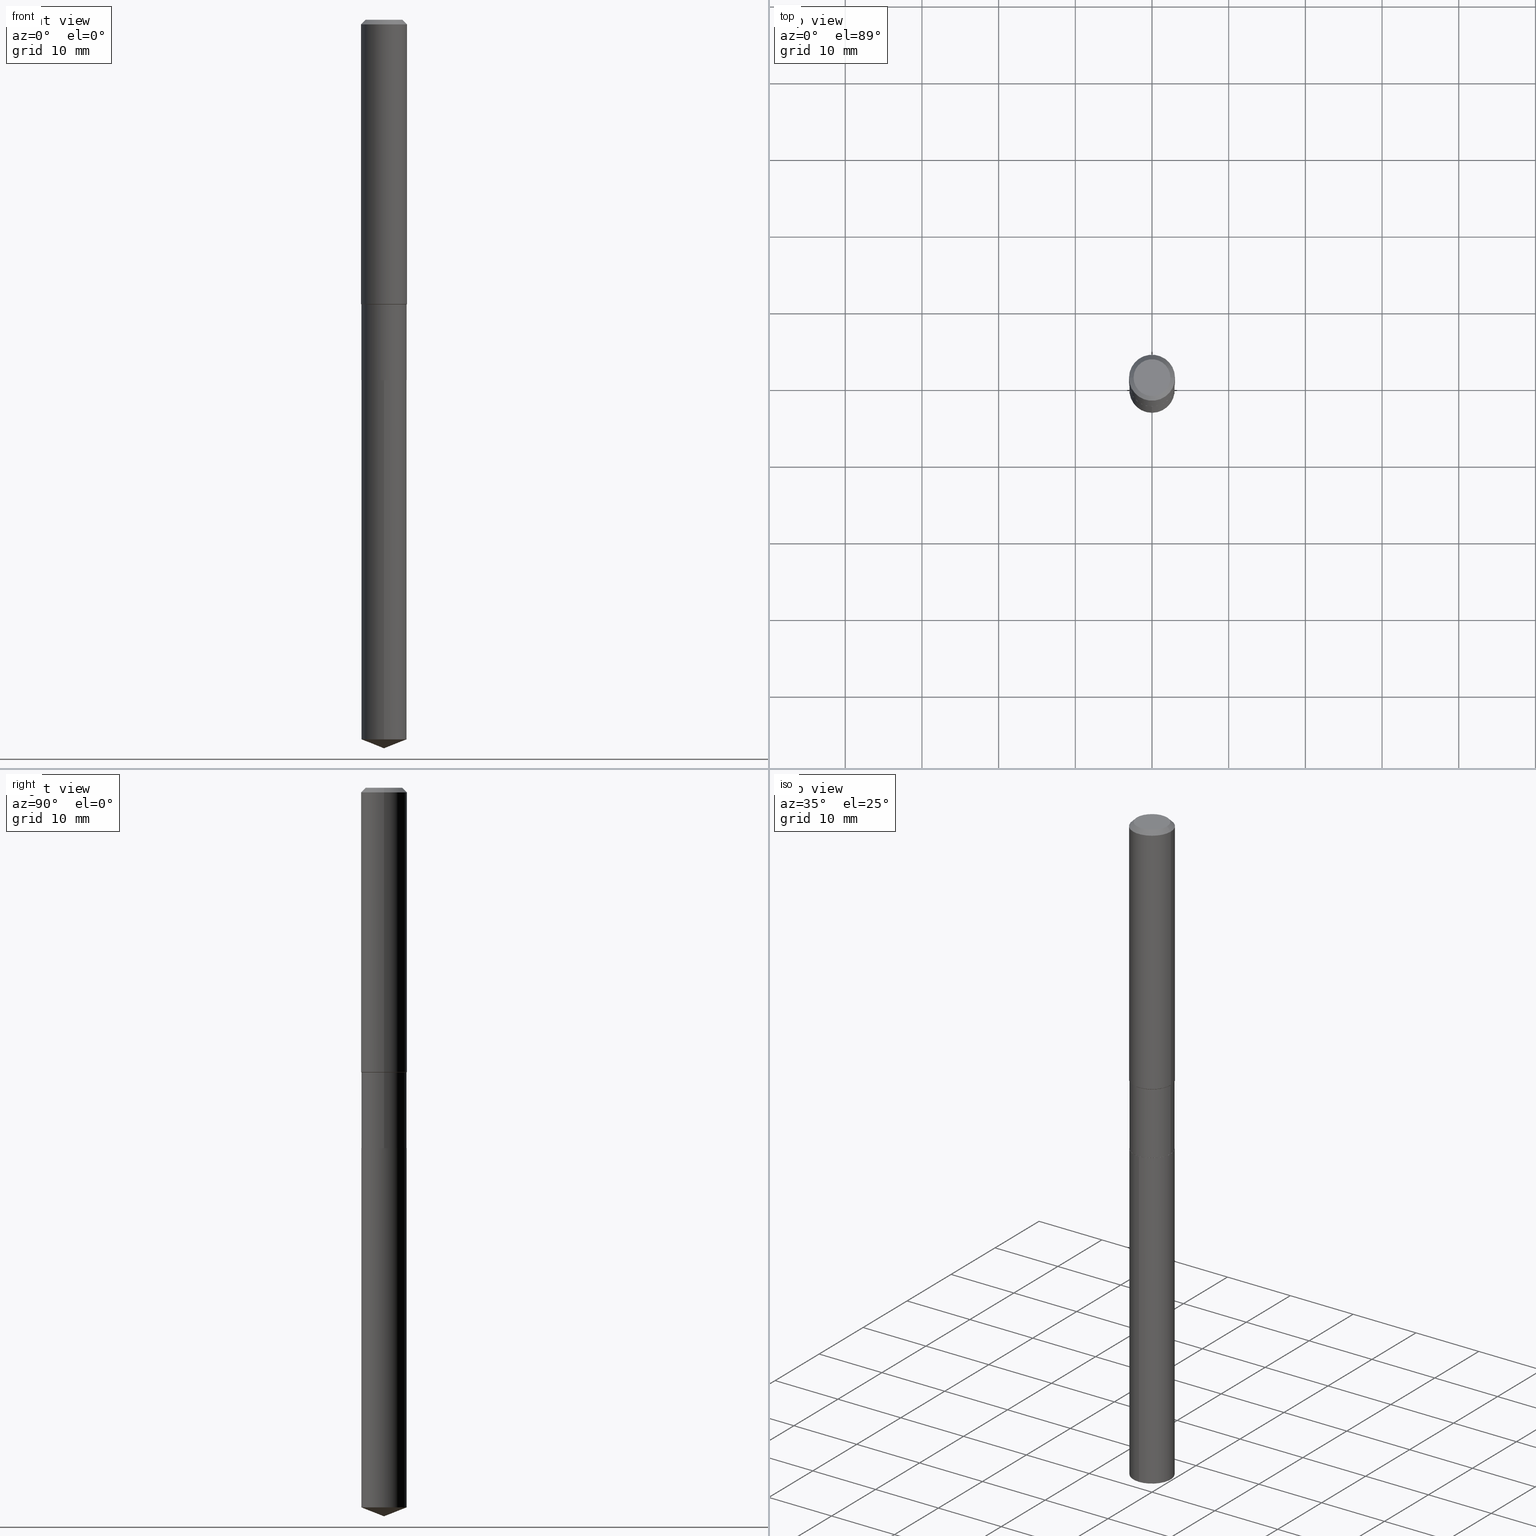
[diagram: canonical four-view strip — front | top / right | iso, engineering-drawing reading convention]
A machine part, canonical four-view strip (front | top / right | iso — engineering-drawing reading convention). The complete STEP part file that produces these views, byte-faithful:
ISO-10303-21;
HEADER;
FILE_DESCRIPTION (( 'STEP AP203' ),
    '1' );
FILE_NAME ('66635.STEP',
    '2024-04-25T02:32:12',
    ( '' ),
    ( '' ),
    'SwSTEP 2.0',
    'SolidWorks 2023',
    '' );
FILE_SCHEMA (( 'CONFIG_CONTROL_DESIGN' ));
ENDSEC;

DATA;
#1 = CARTESIAN_POINT ( 'NONE',  ( 4.525095478964977954E-29, -6.460637069395358365E-15, -1.850400000000000489 ) ) ;
#2 = AXIS2_PLACEMENT_3D ( 'NONE', #391, #128, #54 ) ;
#3 = LOCAL_TIME ( 22, 32, 12.00000000000000000, #327 ) ;
#4 = DIRECTION ( 'NONE',  ( -2.445480539169629745E-29, 3.491464536541551464E-15, 1.000000000000000000 ) ) ;
#5 = CYLINDRICAL_SURFACE ( 'NONE', #376, 0.1161499999999999755 ) ;
#6 = CARTESIAN_POINT ( 'NONE',  ( 0.1180999999999999966, -9.071566814582237199E-16, -0.02362000000000014088 ) ) ;
#7 = FACE_OUTER_BOUND ( 'NONE', #212, .T. ) ;
#8 = DIRECTION ( 'NONE',  ( -2.445480539169629745E-29, 3.491464536541551464E-15, 1.000000000000000000 ) ) ;
#9 = DIRECTION ( 'NONE',  ( 1.000000000000000000, -6.982962677686263555E-15, 0.000000000000000000 ) ) ;
#10 = DATE_AND_TIME ( #353, #283 ) ;
#11 = VERTEX_POINT ( 'NONE', #266 ) ;
#12 = VECTOR ( 'NONE', #468, 39.37007874015748143 ) ;
#13 = CC_DESIGN_SECURITY_CLASSIFICATION ( #300, ( #338 ) ) ;
#14 = EDGE_LOOP ( 'NONE', ( #81, #288, #148, #57 ) ) ;
#15 = DIRECTION ( 'NONE',  ( -2.445480539169629745E-29, 3.491464536541551464E-15, 1.000000000000000000 ) ) ;
#16 = DATE_TIME_ROLE ( 'creation_date' ) ;
#17 = EDGE_CURVE ( 'NONE', #173, #177, #48, .T. ) ;
#18 = PERSON_AND_ORGANIZATION_ROLE ( 'creator' ) ;
#19 = VECTOR ( 'NONE', #109, 39.37007874015748143 ) ;
#20 = VECTOR ( 'NONE', #303, 39.37007874015748143 ) ;
#21 = LOCAL_TIME ( 22, 32, 12.00000000000000000, #248 ) ;
#22 = APPROVAL_ROLE ( '' ) ;
#23 = ORIENTED_EDGE ( 'NONE', *, *, #239, .T. ) ;
#24 = ORIENTED_EDGE ( 'NONE', *, *, #308, .T. ) ;
#25 = VERTEX_POINT ( 'NONE', #44 ) ;
#26 = ADVANCED_FACE ( 'NONE', ( #193 ), #198, .F. ) ;
#27 = VERTEX_POINT ( 'NONE', #165 ) ;
#28 = CIRCLE ( 'NONE', #174, 0.09447999999999998066 ) ;
#29 = CONICAL_SURFACE ( 'NONE', #484, 99.94676754584088485, 1.195550537616122622 ) ;
#30 = PERSON_AND_ORGANIZATION ( #477, #243 ) ;
#31 = VERTEX_POINT ( 'NONE', #6 ) ;
#32 =( NAMED_UNIT ( * ) PLANE_ANGLE_UNIT ( ) SI_UNIT ( $, .RADIAN. ) );
#33 = ORIENTED_EDGE ( 'NONE', *, *, #330, .F. ) ;
#34 = DIRECTION ( 'NONE',  ( 2.445468806185136597E-29, -3.491481338843145583E-15, -1.000000000000000000 ) ) ;
#35 = EDGE_LOOP ( 'NONE', ( #260, #53, #445, #183 ) ) ;
#36 = ADVANCED_FACE ( 'NONE', ( #271 ), #421, .T. ) ;
#37 = APPROVAL_ROLE ( '' ) ;
#38 = DIRECTION ( 'NONE',  ( -6.982962677686265922E-15, -1.000000000000000000, 4.703999989090422785E-15 ) ) ;
#39 = DESIGN_CONTEXT ( 'detailed design', #392, 'design' ) ;
#40 = AXIS2_PLACEMENT_3D ( 'NONE', #448, #34, #113 ) ;
#41 = EDGE_CURVE ( 'NONE', #59, #25, #449, .T. ) ;
#42 = FACE_OUTER_BOUND ( 'NONE', #14, .T. ) ;
#43 = DIRECTION ( 'NONE',  ( 1.000000000000000000, -6.982962677686269866E-15, 0.000000000000000000 ) ) ;
#44 = CARTESIAN_POINT ( 'NONE',  ( -0.1161499999999999477, -4.955201117003356773E-15, -1.461300000000000043 ) ) ;
#45 = LINE ( 'NONE', #257, #20 ) ;
#46 = LINE ( 'NONE', #388, #471 ) ;
#47 = AXIS2_PLACEMENT_3D ( 'NONE', #343, #130, #91 ) ;
#48 = LINE ( 'NONE', #389, #131 ) ;
#49 = CARTESIAN_POINT ( 'NONE',  ( 0.1181000000000000799, -8.246878922347486570E-16, 5.758764772215004644E-30 ) ) ;
#50 = FACE_OUTER_BOUND ( 'NONE', #365, .T. ) ;
#51 = CARTESIAN_POINT ( 'NONE',  ( 0.000000000000000000, 0.000000000000000000, 0.000000000000000000 ) ) ;
#52 = DIRECTION ( 'NONE',  ( -2.445468806185136597E-29, 3.491481338843145583E-15, 1.000000000000000000 ) ) ;
#53 = ORIENTED_EDGE ( 'NONE', *, *, #372, .T. ) ;
#54 = DIRECTION ( 'NONE',  ( 1.000000000000000000, -6.982962677686269866E-15, 0.000000000000000000 ) ) ;
#55 = EDGE_CURVE ( 'NONE', #177, #317, #138, .T. ) ;
#56 = DIRECTION ( 'NONE',  ( -0.7071067811865444641, 7.493145998870343116E-15, 0.7071067811865505703 ) ) ;
#57 = ORIENTED_EDGE ( 'NONE', *, *, #438, .F. ) ;
#58 = CARTESIAN_POINT ( 'NONE',  ( 0.000000000000000000, 0.000000000000000000, 0.000000000000000000 ) ) ;
#59 = VERTEX_POINT ( 'NONE', #160 ) ;
#60 = CC_DESIGN_APPROVAL ( #176, ( #338 ) ) ;
#61 = ADVANCED_FACE ( 'NONE', ( #50 ), #5, .T. ) ;
#62 = CARTESIAN_POINT ( 'NONE',  ( 0.1156500000000000028, -7.268216703069775892E-15, -1.850400000000000489 ) ) ;
#63 = ORIENTED_EDGE ( 'NONE', *, *, #430, .T. ) ;
#64 = PERSON_AND_ORGANIZATION_ROLE ( 'design_supplier' ) ;
#65 = PERSON_AND_ORGANIZATION_ROLE ( 'creator' ) ;
#66 = EDGE_LOOP ( 'NONE', ( #111, #348 ) ) ;
#67 = AXIS2_PLACEMENT_3D ( 'NONE', #189, #485, #455 ) ;
#68 = ORIENTED_EDGE ( 'NONE', *, *, #350, .F. ) ;
#69 = VECTOR ( 'NONE', #305, 39.37007874015748143 ) ;
#70 = ADVANCED_BREP_SHAPE_REPRESENTATION ( '66635', ( #425, #437, #451 ), #466 ) ;
#71 = DATE_TIME_ROLE ( 'classification_date' ) ;
#72 = CC_DESIGN_DATE_AND_TIME_ASSIGNMENT ( #403, #16, ( #473 ) ) ;
#73 = DIRECTION ( 'NONE',  ( -2.445468806185136597E-29, 3.491481338843145583E-15, 1.000000000000000000 ) ) ;
#74 = ORIENTED_EDGE ( 'NONE', *, *, #179, .T. ) ;
#75 = FACE_OUTER_BOUND ( 'NONE', #401, .T. ) ;
#76 = MECHANICAL_CONTEXT ( 'NONE', #267, 'mechanical' ) ;
#77 = DIRECTION ( 'NONE',  ( -2.445468806185136597E-29, 3.491481338843145583E-15, 1.000000000000000000 ) ) ;
#78 = CIRCLE ( 'NONE', #371, 0.1161499999999999477 ) ;
#79 = ORIENTED_EDGE ( 'NONE', *, *, #236, .F. ) ;
#80 = PLANE ( 'NONE',  #263 ) ;
#81 = ORIENTED_EDGE ( 'NONE', *, *, #41, .T. ) ;
#82 = ADVANCED_FACE ( 'NONE', ( #163 ), #310, .T. ) ;
#83 = FACE_OUTER_BOUND ( 'NONE', #96, .T. ) ;
#84 = CARTESIAN_POINT ( 'NONE',  ( -0.1180999999999999966, -1.749730069599430358E-15, -0.02362000000000014088 ) ) ;
#85 = FACE_OUTER_BOUND ( 'NONE', #151, .T. ) ;
#86 = CARTESIAN_POINT ( 'NONE',  ( -0.1161499999999999755, 8.252953875853561917E-16, -5.713343107331072131E-30 ) ) ;
#87 = AXIS2_PLACEMENT_3D ( 'NONE', #1, #203, #417 ) ;
#88 = CARTESIAN_POINT ( 'NONE',  ( -0.1161499999999999477, -4.276806292866132876E-15, -1.461300000000000043 ) ) ;
#89 = ADVANCED_FACE ( 'NONE', ( #420 ), #116, .T. ) ;
#90 = ORIENTED_EDGE ( 'NONE', *, *, #320, .T. ) ;
#91 = DIRECTION ( 'NONE',  ( -6.982962677686265922E-15, -1.000000000000000000, 2.351999994545211393E-15 ) ) ;
#92 = CARTESIAN_POINT ( 'NONE',  ( 0.1161499999999999477, -5.913172795464748024E-15, -1.461300000000000043 ) ) ;
#93 = FACE_OUTER_BOUND ( 'NONE', #441, .T. ) ;
#94 = ORIENTED_EDGE ( 'NONE', *, *, #418, .T. ) ;
#95 = CARTESIAN_POINT ( 'NONE',  ( 9.146586693356927948E-29, -1.305877565957271148E-14, -3.740200000000000191 ) ) ;
#96 = EDGE_LOOP ( 'NONE', ( #479, #90 ) ) ;
#97 = ORIENTED_EDGE ( 'NONE', *, *, #350, .T. ) ;
#98 = EDGE_CURVE ( 'NONE', #312, #364, #197, .T. ) ;
#99 = CIRCLE ( 'NONE', #289, 0.1180999999999999966 ) ;
#100 = CARTESIAN_POINT ( 'NONE',  ( 8.252953875854015512E-16, 0.1161499999999935501, -1.850400000000000489 ) ) ;
#101 = ORIENTED_EDGE ( 'NONE', *, *, #408, .F. ) ;
#102 = AXIS2_PLACEMENT_3D ( 'NONE', #134, #419, #127 ) ;
#103 = ORIENTED_EDGE ( 'NONE', *, *, #172, .T. ) ;
#104 = ORIENTED_EDGE ( 'NONE', *, *, #261, .F. ) ;
#105 = PERSON_AND_ORGANIZATION ( #477, #243 ) ;
#106 = ORIENTED_EDGE ( 'NONE', *, *, #408, .T. ) ;
#107 = APPROVAL_PERSON_ORGANIZATION ( #373, #405, #22 ) ;
#108 = ORIENTED_EDGE ( 'NONE', *, *, #145, .F. ) ;
#109 = DIRECTION ( 'NONE',  ( -2.445480539169630025E-29, 3.491464536541551464E-15, 1.000000000000000000 ) ) ;
#110 = PRODUCT ( '66635', '66635', '', ( #76 ) ) ;
#111 = ORIENTED_EDGE ( 'NONE', *, *, #112, .F. ) ;
#112 = EDGE_CURVE ( 'NONE', #480, #11, #368, .T. ) ;
#113 = DIRECTION ( 'NONE',  ( -1.000000000000000000, 6.982962677686266711E-15, 0.000000000000000000 ) ) ;
#114 = AXIS2_PLACEMENT_3D ( 'NONE', #51, #115, #255 ) ;
#115 = DIRECTION ( 'NONE',  ( -2.445468806185136597E-29, 3.491481338843145583E-15, 1.000000000000000000 ) ) ;
#116 = CONICAL_SURFACE ( 'NONE', #2, 0.1156500000000000028, 0.7853981633972775267 ) ;
#117 = VERTEX_POINT ( 'NONE', #84 ) ;
#118 = CARTESIAN_POINT ( 'NONE',  ( 4.525095478964977394E-29, -6.460637069395357576E-15, -1.850400000000000267 ) ) ;
#119 = APPROVAL_DATE_TIME ( #284, #246 ) ;
#120 = DIRECTION ( 'NONE',  ( 2.445480539169629464E-29, -3.491464536541551464E-15, -1.000000000000000000 ) ) ;
#121 = FACE_OUTER_BOUND ( 'NONE', #217, .T. ) ;
#122 = ADVANCED_FACE ( 'NONE', ( #126 ), #450, .T. ) ;
#123 = AXIS2_PLACEMENT_3D ( 'NONE', #459, #344, #454 ) ;
#124 = ORIENTED_EDGE ( 'NONE', *, *, #446, .F. ) ;
#125 = DIRECTION ( 'NONE',  ( -2.445480539169629745E-29, 3.491464536541551464E-15, 1.000000000000000000 ) ) ;
#126 = FACE_OUTER_BOUND ( 'NONE', #158, .T. ) ;
#127 = DIRECTION ( 'NONE',  ( 1.000000000000000000, -6.982962677686265922E-15, 0.000000000000000000 ) ) ;
#128 = DIRECTION ( 'NONE',  ( -2.445468806185136597E-29, 3.491481338843145583E-15, 1.000000000000000000 ) ) ;
#129 = EDGE_CURVE ( 'NONE', #167, #214, #28, .T. ) ;
#130 = DIRECTION ( 'NONE',  ( -2.445480539169629745E-29, 3.491464536541551464E-15, 1.000000000000000000 ) ) ;
#131 = VECTOR ( 'NONE', #377, 39.37007874015748854 ) ;
#132 = AXIS2_PLACEMENT_3D ( 'NONE', #293, #340, #156 ) ;
#133 = CC_DESIGN_APPROVAL ( #405, ( #300 ) ) ;
#134 = CARTESIAN_POINT ( 'NONE',  ( 4.523872744561885153E-29, -6.458891328725936072E-15, -1.849900000000000322 ) ) ;
#135 = LINE ( 'NONE', #86, #206 ) ;
#136 = DIRECTION ( 'NONE',  ( -2.445468806185136597E-29, 3.491481338843145583E-15, 1.000000000000000000 ) ) ;
#137 = ORIENTED_EDGE ( 'NONE', *, *, #438, .T. ) ;
#138 = LINE ( 'NONE', #407, #19 ) ;
#139 = LENGTH_MEASURE_WITH_UNIT ( LENGTH_MEASURE( 0.02539999999999999897 ), #319 );
#140 = AXIS2_PLACEMENT_3D ( 'NONE', #223, #73, #375 ) ;
#141 = APPROVAL_DATE_TIME ( #436, #176 ) ;
#142 = AXIS2_PLACEMENT_3D ( 'NONE', #235, #169, #428 ) ;
#143 = ORIENTED_EDGE ( 'NONE', *, *, #224, .F. ) ;
#144 = PERSON_AND_ORGANIZATION ( #477, #243 ) ;
#145 = EDGE_CURVE ( 'NONE', #366, #25, #135, .T. ) ;
#146 = ORIENTED_EDGE ( 'NONE', *, *, #330, .T. ) ;
#147 = VECTOR ( 'NONE', #56, 39.37007874015748143 ) ;
#148 = ORIENTED_EDGE ( 'NONE', *, *, #98, .F. ) ;
#149 = ADVANCED_FACE ( 'NONE', ( #93 ), #395, .T. ) ;
#150 = CALENDAR_DATE ( 2024, 24, 4 ) ;
#151 = EDGE_LOOP ( 'NONE', ( #204, #297, #334, #101 ) ) ;
#152 = CARTESIAN_POINT ( 'NONE',  ( 0.1181000000000001632, -5.919981184075493072E-15, -1.459349999999999925 ) ) ;
#153 = CIRCLE ( 'NONE', #219, 0.1161500000000000032 ) ;
#154 = CIRCLE ( 'NONE', #142, 0.1156500000000000028 ) ;
#155 = APPROVAL_STATUS ( 'not_yet_approved' ) ;
#156 = DIRECTION ( 'NONE',  ( -6.982962677686265922E-15, -1.000000000000000000, 2.351999994545211393E-15 ) ) ;
#157 = LINE ( 'NONE', #302, #241 ) ;
#158 = EDGE_LOOP ( 'NONE', ( #361, #356, #329 ) ) ;
#159 = DIRECTION ( 'NONE',  ( 2.438088387897960049E-29, -3.491481338843145188E-15, -1.000000000000000000 ) ) ;
#160 = CARTESIAN_POINT ( 'NONE',  ( 0.1161499999999999477, -5.913172795464748024E-15, -1.461300000000000043 ) ) ;
#161 = CONICAL_SURFACE ( 'NONE', #242, 0.1156500000000000028, 0.7853981633972775267 ) ;
#162 = FACE_OUTER_BOUND ( 'NONE', #402, .T. ) ;
#163 = FACE_OUTER_BOUND ( 'NONE', #35, .T. ) ;
#164 = CC_DESIGN_PERSON_AND_ORGANIZATION_ASSIGNMENT ( #321, #18, ( #473 ) ) ;
#165 = CARTESIAN_POINT ( 'NONE',  ( 8.252953875854468121E-16, 0.1161499999999935362, -1.850400000000000489 ) ) ;
#166 = CARTESIAN_POINT ( 'NONE',  ( 9.034677260161599698E-29, -1.289906281496606921E-14, -3.694447298257325318 ) ) ;
#167 = VERTEX_POINT ( 'NONE', #168 ) ;
#168 = CARTESIAN_POINT ( 'NONE',  ( -0.09447999999999998066, 7.009847083995354710E-16, -1.928573779297727792E-17 ) ) ;
#169 = DIRECTION ( 'NONE',  ( -2.445468806185136597E-29, 3.491481338843145583E-15, 1.000000000000000000 ) ) ;
#170 = CIRCLE ( 'NONE', #442, 0.09447999999999998066 ) ;
#171 = LINE ( 'NONE', #400, #358 ) ;
#172 = EDGE_CURVE ( 'NONE', #364, #117, #46, .T. ) ;
#173 = VERTEX_POINT ( 'NONE', #349 ) ;
#174 = AXIS2_PLACEMENT_3D ( 'NONE', #315, #467, #427 ) ;
#175 = SHAPE_DEFINITION_REPRESENTATION ( #475, #70 ) ;
#176 = APPROVAL ( #370, 'UNSPECIFIED' ) ;
#177 = VERTEX_POINT ( 'NONE', #194 ) ;
#178 = CIRCLE ( 'NONE', #456, 0.1180999999999999966 ) ;
#179 = EDGE_CURVE ( 'NONE', #214, #31, #374, .T. ) ;
#180 = AXIS2_PLACEMENT_3D ( 'NONE', #488, #159, #230 ) ;
#181 = APPROVAL_PERSON_ORGANIZATION ( #286, #246, #37 ) ;
#182 = PERSON_AND_ORGANIZATION_ROLE ( 'classification_officer' ) ;
#183 = ORIENTED_EDGE ( 'NONE', *, *, #55, .F. ) ;
#184 = APPLICATION_PROTOCOL_DEFINITION ( 'international standard', 'config_control_design', 1994, #267 ) ;
#185 = EDGE_LOOP ( 'NONE', ( #211, #291, #354, #79 ) ) ;
#186 = CARTESIAN_POINT ( 'NONE',  ( 0.09447999999999998066, -7.704367267948738690E-16, -1.928573779296752193E-17 ) ) ;
#187 = VERTEX_POINT ( 'NONE', #411 ) ;
#188 = ORIENTED_EDGE ( 'NONE', *, *, #341, .T. ) ;
#189 = CARTESIAN_POINT ( 'NONE',  ( 5.776197320209327532E-31, -8.246878922347559293E-17, -0.02362000000000014088 ) ) ;
#190 = CIRCLE ( 'NONE', #140, 0.1161500000000000032 ) ;
#191 = CARTESIAN_POINT ( 'NONE',  ( 4.525095478964977394E-29, -6.460637069395357576E-15, -1.850400000000000267 ) ) ;
#192 = DIRECTION ( 'NONE',  ( -6.982962677686265922E-15, -1.000000000000000000, 2.351999994545211393E-15 ) ) ;
#193 = FACE_OUTER_BOUND ( 'NONE', #66, .T. ) ;
#194 = CARTESIAN_POINT ( 'NONE',  ( -8.110711150131693227E-16, -0.1161500000000128818, -3.694447298257324874 ) ) ;
#195 = UNCERTAINTY_MEASURE_WITH_UNIT (LENGTH_MEASURE( 1.000000000000000082E-05 ), #318, 'distance_accuracy_value', 'NONE');
#196 = EDGE_CURVE ( 'NONE', #11, #366, #45, .T. ) ;
#197 = CIRCLE ( 'NONE', #465, 0.1181000000000001632 ) ;
#198 = PLANE ( 'NONE',  #296 ) ;
#199 = DIRECTION ( 'NONE',  ( 1.000000000000000000, -6.982962677686269866E-15, 0.000000000000000000 ) ) ;
#200 = DIRECTION ( 'NONE',  ( -2.445480539169630025E-29, 3.491464536541551464E-15, 1.000000000000000000 ) ) ;
#201 = DIRECTION ( 'NONE',  ( -2.445468806185136877E-29, 3.491481338843145188E-15, 1.000000000000000000 ) ) ;
#202 = DIRECTION ( 'NONE',  ( -2.445468806185136597E-29, 3.491481338843145583E-15, 1.000000000000000000 ) ) ;
#203 = DIRECTION ( 'NONE',  ( -2.445468806185136597E-29, 3.491481338843145583E-15, 1.000000000000000000 ) ) ;
#204 = ORIENTED_EDGE ( 'NONE', *, *, #112, .T. ) ;
#205 = DIRECTION ( 'NONE',  ( -2.445468806185136597E-29, 3.491481338843145583E-15, 1.000000000000000000 ) ) ;
#206 = VECTOR ( 'NONE', #233, 39.37007874015748143 ) ;
#207 = ADVANCED_FACE ( 'NONE', ( #416 ), #378, .T. ) ;
#208 = CARTESIAN_POINT ( 'NONE',  ( 3.573563566478340670E-29, -5.102101680451488278E-15, -1.461300000000000043 ) ) ;
#209 = DIMENSIONAL_EXPONENTS ( 1.000000000000000000, 0.000000000000000000, 0.000000000000000000, 0.000000000000000000, 0.000000000000000000, 0.000000000000000000, 0.000000000000000000 ) ;
#210 = DIRECTION ( 'NONE',  ( 1.000000000000000000, -6.982962677686266711E-15, 0.000000000000000000 ) ) ;
#211 = ORIENTED_EDGE ( 'NONE', *, *, #172, .F. ) ;
#212 = EDGE_LOOP ( 'NONE', ( #108, #237, #97, #322 ) ) ;
#213 = ADVANCED_FACE ( 'NONE', ( #121 ), #325, .T. ) ;
#214 = VERTEX_POINT ( 'NONE', #186 ) ;
#215 = DIRECTION ( 'NONE',  ( -2.445468806185136597E-29, 3.491481338843145583E-15, 1.000000000000000000 ) ) ;
#216 = CIRCLE ( 'NONE', #345, 0.1161500000000000032 ) ;
#217 = EDGE_LOOP ( 'NONE', ( #227, #188, #137, #143 ) ) ;
#218 = VECTOR ( 'NONE', #464, 39.37007874015748143 ) ;
#219 = AXIS2_PLACEMENT_3D ( 'NONE', #452, #4, #38 ) ;
#220 = APPROVAL_PERSON_ORGANIZATION ( #253, #176, #470 ) ;
#221 = CARTESIAN_POINT ( 'NONE',  ( 0.1180999999999999966, -8.926936027602933910E-16, -0.02362000000000014088 ) ) ;
#222 = DIRECTION ( 'NONE',  ( 1.000000000000000000, 0.000000000000000000, 0.000000000000000000 ) ) ;
#223 = CARTESIAN_POINT ( 'NONE',  ( 4.523872744561885153E-29, -6.458891328725936072E-15, -1.849900000000000322 ) ) ;
#224 = EDGE_CURVE ( 'NONE', #364, #312, #336, .T. ) ;
#225 = CALENDAR_DATE ( 2024, 24, 4 ) ;
#226 = CARTESIAN_POINT ( 'NONE',  ( 5.776197320209327532E-31, -8.246878922347559293E-17, -0.02362000000000014088 ) ) ;
#227 = ORIENTED_EDGE ( 'NONE', *, *, #359, .F. ) ;
#228 = DIRECTION ( 'NONE',  ( 6.982962677686265922E-15, 1.000000000000000000, -3.491464536541551464E-15 ) ) ;
#229 = EDGE_CURVE ( 'NONE', #177, #380, #153, .T. ) ;
#230 = DIRECTION ( 'NONE',  ( -1.000000000000000000, 6.982962677686265922E-15, -4.876176775795935793E-29 ) ) ;
#231 = DIRECTION ( 'NONE',  ( -2.445468806185136597E-29, 3.491481338843145583E-15, 1.000000000000000000 ) ) ;
#232 = CARTESIAN_POINT ( 'NONE',  ( 0.1156500000000000028, -7.268216703069775892E-15, -1.850400000000000489 ) ) ;
#233 = DIRECTION ( 'NONE',  ( -2.445468806185136877E-29, 3.491481338843145188E-15, 1.000000000000000000 ) ) ;
#234 = AXIS2_PLACEMENT_3D ( 'NONE', #383, #15, #352 ) ;
#235 = CARTESIAN_POINT ( 'NONE',  ( 4.525095478964977954E-29, -6.460637069395358365E-15, -1.850400000000000489 ) ) ;
#236 = EDGE_CURVE ( 'NONE', #117, #31, #178, .T. ) ;
#237 = ORIENTED_EDGE ( 'NONE', *, *, #446, .T. ) ;
#238 = LINE ( 'NONE', #95, #387 ) ;
#239 = EDGE_CURVE ( 'NONE', #317, #27, #216, .T. ) ;
#240 = DIRECTION ( 'NONE',  ( 1.000000000000000000, -6.982962677686269866E-15, 0.000000000000000000 ) ) ;
#241 = VECTOR ( 'NONE', #381, 39.37007874015748143 ) ;
#242 = AXIS2_PLACEMENT_3D ( 'NONE', #311, #205, #278 ) ;
#243 = ORGANIZATION ( 'UNSPECIFIED', 'UNSPECIFIED', '' ) ;
#244 = LINE ( 'NONE', #62, #275 ) ;
#245 = EDGE_LOOP ( 'NONE', ( #332, #94, #106, #124 ) ) ;
#246 = APPROVAL ( #155, 'UNSPECIFIED' ) ;
#247 = PERSON_AND_ORGANIZATION ( #477, #243 ) ;
#248 = COORDINATED_UNIVERSAL_TIME_OFFSET ( 5, 0, .BEHIND. ) ;
#249 = EDGE_LOOP ( 'NONE', ( #474, #74, #146, #104 ) ) ;
#250 = CONICAL_SURFACE ( 'NONE', #40, 0.1180999999999999966, 0.7853981633974460586 ) ;
#251 = ADVANCED_FACE ( 'NONE', ( #42 ), #398, .T. ) ;
#252 = ADVANCED_FACE ( 'NONE', ( #75 ), #262, .T. ) ;
#253 = PERSON_AND_ORGANIZATION ( #477, #243 ) ;
#254 = DIRECTION ( 'NONE',  ( -2.445480539169629745E-29, 3.491464536541551464E-15, 1.000000000000000000 ) ) ;
#255 = DIRECTION ( 'NONE',  ( 1.000000000000000000, -6.982962677686266711E-15, 4.876176775795936353E-29 ) ) ;
#256 = EDGE_CURVE ( 'NONE', #187, #366, #190, .T. ) ;
#257 = CARTESIAN_POINT ( 'NONE',  ( -0.1156500000000000028, -5.638894395488802283E-15, -1.850400000000000489 ) ) ;
#258 = ORIENTED_EDGE ( 'NONE', *, *, #41, .F. ) ;
#259 = DIRECTION ( 'NONE',  ( 1.000000000000000000, -6.982962677686266711E-15, 0.000000000000000000 ) ) ;
#260 = ORIENTED_EDGE ( 'NONE', *, *, #229, .T. ) ;
#261 = EDGE_CURVE ( 'NONE', #167, #117, #157, .T. ) ;
#262 = CYLINDRICAL_SURFACE ( 'NONE', #132, 0.1161500000000000032 ) ;
#263 = AXIS2_PLACEMENT_3D ( 'NONE', #191, #120, #228 ) ;
#264 = LOCAL_TIME ( 22, 32, 12.00000000000000000, #335 ) ;
#265 = ADVANCED_FACE ( 'NONE', ( #415 ), #80, .F. ) ;
#266 = CARTESIAN_POINT ( 'NONE',  ( -0.1156500000000000028, -5.636245168314691082E-15, -1.850400000000000489 ) ) ;
#267 = APPLICATION_CONTEXT ( 'configuration controlled 3d designs of mechanical parts and assemblies' ) ;
#268 = DIRECTION ( 'NONE',  ( 1.000000000000000000, -6.982962677686269866E-15, 0.000000000000000000 ) ) ;
#269 = DIRECTION ( 'NONE',  ( 1.000000000000000000, -6.982962677686266711E-15, 4.876176775795936353E-29 ) ) ;
#270 = CARTESIAN_POINT ( 'NONE',  ( 8.252953875854466149E-16, 0.1161499999999871108, -3.694447298257326207 ) ) ;
#271 = FACE_OUTER_BOUND ( 'NONE', #185, .T. ) ;
#272 = LINE ( 'NONE', #88, #147 ) ;
#273 = CARTESIAN_POINT ( 'NONE',  ( 3.568794902306278296E-29, -5.095293291840744020E-15, -1.459349999999999925 ) ) ;
#274 = EDGE_LOOP ( 'NONE', ( #23, #24 ) ) ;
#275 = VECTOR ( 'NONE', #469, 39.37007874015748143 ) ;
#276 = CARTESIAN_POINT ( 'NONE',  ( 5.776197320209327532E-31, -8.246878922347559293E-17, -0.02362000000000014088 ) ) ;
#277 = CARTESIAN_POINT ( 'NONE',  ( 0.000000000000000000, 0.000000000000000000, 0.000000000000000000 ) ) ;
#278 = DIRECTION ( 'NONE',  ( 1.000000000000000000, -6.982962677686269866E-15, 0.000000000000000000 ) ) ;
#279 = APPROVAL_DATE_TIME ( #10, #405 ) ;
#280 = DIRECTION ( 'NONE',  ( 1.000000000000000000, -6.982962677686267499E-15, 4.875432709231658792E-29 ) ) ;
#281 = AXIS2_PLACEMENT_3D ( 'NONE', #337, #487, #268 ) ;
#282 = ADVANCED_FACE ( 'NONE', ( #83 ), #342, .F. ) ;
#283 = LOCAL_TIME ( 22, 32, 12.00000000000000000, #362 ) ;
#284 = DATE_AND_TIME ( #482, #264 ) ;
#285 = ORIENTED_EDGE ( 'NONE', *, *, #179, .F. ) ;
#286 = PERSON_AND_ORGANIZATION ( #477, #243 ) ;
#287 = ORIENTED_EDGE ( 'NONE', *, *, #236, .T. ) ;
#288 = ORIENTED_EDGE ( 'NONE', *, *, #359, .T. ) ;
#289 = AXIS2_PLACEMENT_3D ( 'NONE', #276, #202, #210 ) ;
#290 = ADVANCED_FACE ( 'NONE', ( #382 ), #250, .T. ) ;
#291 = ORIENTED_EDGE ( 'NONE', *, *, #224, .T. ) ;
#292 = CARTESIAN_POINT ( 'NONE',  ( 0.000000000000000000, 0.000000000000000000, 0.000000000000000000 ) ) ;
#293 = CARTESIAN_POINT ( 'NONE',  ( 4.525095478964977394E-29, -6.460637069395357576E-15, -1.850400000000000267 ) ) ;
#294 = DIRECTION ( 'NONE',  ( 0.000000000000000000, 0.000000000000000000, 1.000000000000000000 ) ) ;
#295 = CC_DESIGN_PERSON_AND_ORGANIZATION_ASSIGNMENT ( #30, #182, ( #300 ) ) ;
#296 = AXIS2_PLACEMENT_3D ( 'NONE', #339, #486, #346 ) ;
#297 = ORIENTED_EDGE ( 'NONE', *, *, #196, .T. ) ;
#298 = AXIS2_PLACEMENT_3D ( 'NONE', #413, #77, #43 ) ;
#299 = CARTESIAN_POINT ( 'NONE',  ( -8.110711150132145836E-16, -0.1161500000000064564, -1.850400000000000045 ) ) ;
#300 = SECURITY_CLASSIFICATION ( '', '', #409 ) ;
#301 = APPLICATION_PROTOCOL_DEFINITION ( 'international standard', 'config_control_design', 1994, #392 ) ;
#302 = CARTESIAN_POINT ( 'NONE',  ( -0.1180999999999999966, 7.422191030112725094E-16, -0.02362000000000014088 ) ) ;
#303 = DIRECTION ( 'NONE',  ( -0.7071067811864267805, 7.493145998869918709E-15, 0.7071067811866682540 ) ) ;
#304 = ORIENTED_EDGE ( 'NONE', *, *, #323, .F. ) ;
#305 = DIRECTION ( 'NONE',  ( 0.7071067811865459074, -7.319954787623249734E-15, -0.7071067811865491270 ) ) ;
#306 = AXIS2_PLACEMENT_3D ( 'NONE', #58, #357, #269 ) ;
#307 = CIRCLE ( 'NONE', #102, 0.1161500000000000032 ) ;
#308 = EDGE_CURVE ( 'NONE', #27, #317, #406, .T. ) ;
#309 = DIRECTION ( 'NONE',  ( -2.445480539169629745E-29, 3.491464536541551464E-15, 1.000000000000000000 ) ) ;
#310 = CYLINDRICAL_SURFACE ( 'NONE', #47, 0.1161500000000000032 ) ;
#311 = CARTESIAN_POINT ( 'NONE',  ( 4.525095478964977954E-29, -6.460637069395358365E-15, -1.850400000000000489 ) ) ;
#312 = VERTEX_POINT ( 'NONE', #152 ) ;
#313 = PRODUCT_RELATED_PRODUCT_CATEGORY ( 'detail', '', ( #110 ) ) ;
#314 = LINE ( 'NONE', #92, #218 ) ;
#315 = CARTESIAN_POINT ( 'NONE',  ( 4.716267017698007905E-46, -6.733579360998555036E-32, -1.928573779297252010E-17 ) ) ;
#316 = AXIS2_PLACEMENT_3D ( 'NONE', #333, #254, #481 ) ;
#317 = VERTEX_POINT ( 'NONE', #299 ) ;
#318 =( CONVERSION_BASED_UNIT ( 'INCH', #139 ) LENGTH_UNIT ( ) NAMED_UNIT ( #209 ) );
#319 =( LENGTH_UNIT ( ) NAMED_UNIT ( * ) SI_UNIT ( $, .METRE. ) );
#320 = EDGE_CURVE ( 'NONE', #214, #167, #170, .T. ) ;
#321 = PERSON_AND_ORGANIZATION ( #477, #243 ) ;
#322 = ORIENTED_EDGE ( 'NONE', *, *, #341, .F. ) ;
#323 = EDGE_CURVE ( 'NONE', #312, #31, #390, .T. ) ;
#324 = CLOSED_SHELL ( 'NONE', ( #82, #399, #122, #252, #265 ) ) ;
#325 = CONICAL_SURFACE ( 'NONE', #298, 0.1161499999999999477, 0.7853981633974439491 ) ;
#326 = LOCAL_TIME ( 22, 32, 12.00000000000000000, #439 ) ;
#327 = COORDINATED_UNIVERSAL_TIME_OFFSET ( 5, 0, .BEHIND. ) ;
#328 = ORIENTED_EDGE ( 'NONE', *, *, #372, .F. ) ;
#329 = ORIENTED_EDGE ( 'NONE', *, *, #430, .F. ) ;
#330 = EDGE_CURVE ( 'NONE', #31, #117, #99, .T. ) ;
#331 = APPROVAL_STATUS ( 'not_yet_approved' ) ;
#332 = ORIENTED_EDGE ( 'NONE', *, *, #196, .F. ) ;
#333 = CARTESIAN_POINT ( 'NONE',  ( 4.525095478964977394E-29, -6.460637069395357576E-15, -1.850400000000000267 ) ) ;
#334 = ORIENTED_EDGE ( 'NONE', *, *, #256, .F. ) ;
#335 = COORDINATED_UNIVERSAL_TIME_OFFSET ( 5, 0, .BEHIND. ) ;
#336 = CIRCLE ( 'NONE', #123, 0.1181000000000001632 ) ;
#337 = CARTESIAN_POINT ( 'NONE',  ( 3.573563566478340670E-29, -5.102101680451488278E-15, -1.461300000000000043 ) ) ;
#338 = PRODUCT_DEFINITION_FORMATION_WITH_SPECIFIED_SOURCE ( 'ANY', '', #110, .NOT_KNOWN. ) ;
#339 = CARTESIAN_POINT ( 'NONE',  ( 1.472872666025832178E-29, -1.083159385925818188E-14, -1.850400000000000489 ) ) ;
#340 = DIRECTION ( 'NONE',  ( -2.445480539169629745E-29, 3.491464536541551464E-15, 1.000000000000000000 ) ) ;
#341 = EDGE_CURVE ( 'NONE', #25, #59, #78, .T. ) ;
#342 = PLANE ( 'NONE',  #180 ) ;
#343 = CARTESIAN_POINT ( 'NONE',  ( 4.525095478964977394E-29, -6.460637069395357576E-15, -1.850400000000000267 ) ) ;
#344 = DIRECTION ( 'NONE',  ( -2.445468806185136597E-29, 3.491481338843145583E-15, 1.000000000000000000 ) ) ;
#345 = AXIS2_PLACEMENT_3D ( 'NONE', #118, #125, #192 ) ;
#346 = DIRECTION ( 'NONE',  ( 1.000000000000000000, -6.982962677686265922E-15, 4.876176775795935793E-29 ) ) ;
#347 = DIRECTION ( 'NONE',  ( 6.611014441532074478E-15, 0.9304175679820283484, 0.3665012267242876431 ) ) ;
#348 = ORIENTED_EDGE ( 'NONE', *, *, #418, .F. ) ;
#349 = CARTESIAN_POINT ( 'NONE',  ( 9.146586312602250272E-29, -1.305877565957271148E-14, -3.740200000000000191 ) ) ;
#350 = EDGE_CURVE ( 'NONE', #187, #59, #171, .T. ) ;
#351 = DIRECTION ( 'NONE',  ( -2.445468806185136877E-29, 3.491481338843145188E-15, 1.000000000000000000 ) ) ;
#352 = DIRECTION ( 'NONE',  ( -6.982962677686265133E-15, -1.000000000000000000, 3.498627837349972274E-15 ) ) ;
#353 = CALENDAR_DATE ( 2024, 24, 4 ) ;
#354 = ORIENTED_EDGE ( 'NONE', *, *, #323, .T. ) ;
#355 = DIRECTION ( 'NONE',  ( 1.000000000000000000, -6.982962677686266711E-15, 4.876176775795935232E-29 ) ) ;
#356 = ORIENTED_EDGE ( 'NONE', *, *, #17, .T. ) ;
#357 = DIRECTION ( 'NONE',  ( -2.445468806185136597E-29, 3.491481338843145583E-15, 1.000000000000000000 ) ) ;
#358 = VECTOR ( 'NONE', #351, 39.37007874015748143 ) ;
#359 = EDGE_CURVE ( 'NONE', #25, #364, #272, .T. ) ;
#360 = DIRECTION ( 'NONE',  ( -6.982962677686265133E-15, -1.000000000000000000, 3.498627837349972274E-15 ) ) ;
#361 = ORIENTED_EDGE ( 'NONE', *, *, #460, .F. ) ;
#362 = COORDINATED_UNIVERSAL_TIME_OFFSET ( 5, 0, .BEHIND. ) ;
#363 = CARTESIAN_POINT ( 'NONE',  ( -0.1161500000000000032, -4.955201117003356773E-15, -1.849900000000000322 ) ) ;
#364 = VERTEX_POINT ( 'NONE', #385 ) ;
#365 = EDGE_LOOP ( 'NONE', ( #490, #397, #258, #68 ) ) ;
#366 = VERTEX_POINT ( 'NONE', #363 ) ;
#367 = ORIENTED_EDGE ( 'NONE', *, *, #308, .F. ) ;
#368 = CIRCLE ( 'NONE', #87, 0.1156500000000000028 ) ;
#369 = CC_DESIGN_PERSON_AND_ORGANIZATION_ASSIGNMENT ( #105, #64, ( #338 ) ) ;
#370 = APPROVAL_STATUS ( 'not_yet_approved' ) ;
#371 = AXIS2_PLACEMENT_3D ( 'NONE', #208, #136, #240 ) ;
#372 = EDGE_CURVE ( 'NONE', #380, #27, #422, .T. ) ;
#373 = PERSON_AND_ORGANIZATION ( #477, #243 ) ;
#374 = LINE ( 'NONE', #221, #69 ) ;
#375 = DIRECTION ( 'NONE',  ( 1.000000000000000000, -6.982962677686265922E-15, 0.000000000000000000 ) ) ;
#376 = AXIS2_PLACEMENT_3D ( 'NONE', #277, #462, #424 ) ;
#377 = DIRECTION ( 'NONE',  ( -6.497071151882127725E-15, -0.9304175679820257949, 0.3665012267242941935 ) ) ;
#378 = CONICAL_SURFACE ( 'NONE', #67, 0.1180999999999999966, 0.7853981633974460586 ) ;
#379 = DIRECTION ( 'NONE',  ( -2.445468806185136597E-29, 3.491481338843145583E-15, 1.000000000000000000 ) ) ;
#380 = VERTEX_POINT ( 'NONE', #270 ) ;
#381 = DIRECTION ( 'NONE',  ( -0.7071067811865459074, 2.468850131082240100E-15, -0.7071067811865491270 ) ) ;
#382 = FACE_OUTER_BOUND ( 'NONE', #444, .T. ) ;
#383 = CARTESIAN_POINT ( 'NONE',  ( -8.713219678274335127E-28, 1.244004269715567405E-13, 35.62987874015747991 ) ) ;
#384 = AXIS2_PLACEMENT_3D ( 'NONE', #410, #215, #199 ) ;
#385 = CARTESIAN_POINT ( 'NONE',  ( -0.1181000000000001632, -4.256142320908064245E-15, -1.459349999999999925 ) ) ;
#386 = CC_DESIGN_PERSON_AND_ORGANIZATION_ASSIGNMENT ( #247, #65, ( #338 ) ) ;
#387 = VECTOR ( 'NONE', #347, 39.37007874015748143 ) ;
#388 = CARTESIAN_POINT ( 'NONE',  ( -0.1181000000000000799, 8.391509709326788873E-16, -5.809262341591047988E-30 ) ) ;
#389 = CARTESIAN_POINT ( 'NONE',  ( 9.146542891173238393E-29, -1.305883784153045268E-14, -3.740200000000000191 ) ) ;
#390 = LINE ( 'NONE', #49, #12 ) ;
#391 = CARTESIAN_POINT ( 'NONE',  ( 4.525095478964977954E-29, -6.460637069395358365E-15, -1.850400000000000489 ) ) ;
#392 = APPLICATION_CONTEXT ( 'configuration controlled 3d designs of mechanical parts and assemblies' ) ;
#393 = ORIENTED_EDGE ( 'NONE', *, *, #129, .F. ) ;
#394 = CARTESIAN_POINT ( 'NONE',  ( 0.000000000000000000, 0.000000000000000000, 0.000000000000000000 ) ) ;
#395 = CYLINDRICAL_SURFACE ( 'NONE', #306, 0.1181000000000000799 ) ;
#396 = DIRECTION ( 'NONE',  ( -2.445468806185136597E-29, 3.491481338843145583E-15, 1.000000000000000000 ) ) ;
#397 = ORIENTED_EDGE ( 'NONE', *, *, #145, .T. ) ;
#398 = CONICAL_SURFACE ( 'NONE', #281, 0.1161499999999999477, 0.7853981633974439491 ) ;
#399 = ADVANCED_FACE ( 'NONE', ( #162 ), #29, .T. ) ;
#400 = CARTESIAN_POINT ( 'NONE',  ( 0.1161499999999999755, -8.110711150132597459E-16, 5.663679325086977697E-30 ) ) ;
#401 = EDGE_LOOP ( 'NONE', ( #328, #63, #440, #367 ) ) ;
#402 = EDGE_LOOP ( 'NONE', ( #431, #433, #472 ) ) ;
#403 = DATE_AND_TIME ( #225, #326 ) ;
#404 = CALENDAR_DATE ( 2024, 24, 4 ) ;
#405 = APPROVAL ( #331, 'UNSPECIFIED' ) ;
#406 = CIRCLE ( 'NONE', #316, 0.1161500000000000032 ) ;
#407 = CARTESIAN_POINT ( 'NONE',  ( -8.110711150132145836E-16, -0.1161500000000064564, -1.850400000000000045 ) ) ;
#408 = EDGE_CURVE ( 'NONE', #480, #187, #244, .T. ) ;
#409 = SECURITY_CLASSIFICATION_LEVEL ( 'unclassified' ) ;
#410 = CARTESIAN_POINT ( 'NONE',  ( 3.573563566478340670E-29, -5.102101680451488278E-15, -1.461300000000000043 ) ) ;
#411 = CARTESIAN_POINT ( 'NONE',  ( 0.1161500000000000032, -7.269962443739196607E-15, -1.849900000000000322 ) ) ;
#412 = PERSON_AND_ORGANIZATION_ROLE ( 'design_owner' ) ;
#413 = CARTESIAN_POINT ( 'NONE',  ( 3.573563566478340670E-29, -5.102101680451488278E-15, -1.461300000000000043 ) ) ;
#414 = VECTOR ( 'NONE', #200, 39.37007874015748143 ) ;
#415 = FACE_OUTER_BOUND ( 'NONE', #274, .T. ) ;
#416 = FACE_OUTER_BOUND ( 'NONE', #249, .T. ) ;
#417 = DIRECTION ( 'NONE',  ( 1.000000000000000000, -6.982962677686269866E-15, 0.000000000000000000 ) ) ;
#418 = EDGE_CURVE ( 'NONE', #11, #480, #154, .T. ) ;
#419 = DIRECTION ( 'NONE',  ( -2.445468806185136597E-29, 3.491481338843145583E-15, 1.000000000000000000 ) ) ;
#420 = FACE_OUTER_BOUND ( 'NONE', #245, .T. ) ;
#421 = CYLINDRICAL_SURFACE ( 'NONE', #114, 0.1181000000000000799 ) ;
#422 = LINE ( 'NONE', #100, #414 ) ;
#423 = AXIS2_PLACEMENT_3D ( 'NONE', #394, #396, #355 ) ;
#424 = DIRECTION ( 'NONE',  ( 1.000000000000000000, -6.982962677686266711E-15, 4.876176775795935232E-29 ) ) ;
#425 = MANIFOLD_SOLID_BREP ( 'Body-Move/Copy2[1]', #324 ) ;
#426 = CARTESIAN_POINT ( 'NONE',  ( -8.713219678274335127E-28, 1.244004269715567405E-13, 35.62987874015747991 ) ) ;
#427 = DIRECTION ( 'NONE',  ( 1.000000000000000000, -6.982962677686267499E-15, 4.875432709231658792E-29 ) ) ;
#428 = DIRECTION ( 'NONE',  ( 1.000000000000000000, -6.982962677686269866E-15, 0.000000000000000000 ) ) ;
#429 = ORIENTED_EDGE ( 'NONE', *, *, #261, .T. ) ;
#430 = EDGE_CURVE ( 'NONE', #380, #177, #458, .T. ) ;
#431 = ORIENTED_EDGE ( 'NONE', *, *, #17, .F. ) ;
#432 = CARTESIAN_POINT ( 'NONE',  ( 4.716267017698007905E-46, -6.733579360998555036E-32, -1.928573779297252010E-17 ) ) ;
#433 = ORIENTED_EDGE ( 'NONE', *, *, #460, .T. ) ;
#434 = CLOSED_SHELL ( 'NONE', ( #453, #207, #149, #251, #61, #489, #213, #36, #290, #282, #26, #89 ) ) ;
#435 = CC_DESIGN_APPROVAL ( #246, ( #473 ) ) ;
#436 = DATE_AND_TIME ( #404, #21 ) ;
#437 = MANIFOLD_SOLID_BREP ( 'Body-Move/Copy2[2]', #434 ) ;
#438 = EDGE_CURVE ( 'NONE', #59, #312, #314, .T. ) ;
#439 = COORDINATED_UNIVERSAL_TIME_OFFSET ( 5, 0, .BEHIND. ) ;
#440 = ORIENTED_EDGE ( 'NONE', *, *, #55, .T. ) ;
#441 = EDGE_LOOP ( 'NONE', ( #457, #103, #33, #304 ) ) ;
#442 = AXIS2_PLACEMENT_3D ( 'NONE', #432, #52, #280 ) ;
#443 = AXIS2_PLACEMENT_3D ( 'NONE', #166, #309, #461 ) ;
#444 = EDGE_LOOP ( 'NONE', ( #285, #393, #429, #287 ) ) ;
#445 = ORIENTED_EDGE ( 'NONE', *, *, #239, .F. ) ;
#446 = EDGE_CURVE ( 'NONE', #366, #187, #307, .T. ) ;
#447 = DATE_AND_TIME ( #150, #3 ) ;
#448 = CARTESIAN_POINT ( 'NONE',  ( 5.776197320209327532E-31, -8.246878922347559293E-17, -0.02362000000000014088 ) ) ;
#449 = CIRCLE ( 'NONE', #384, 0.1161499999999999477 ) ;
#450 = CONICAL_SURFACE ( 'NONE', #234, 99.94676754584088485, 1.195550537616122622 ) ;
#451 = AXIS2_PLACEMENT_3D ( 'NONE', #292, #294, #222 ) ;
#452 = CARTESIAN_POINT ( 'NONE',  ( 9.034677260161599698E-29, -1.289906281496606921E-14, -3.694447298257325318 ) ) ;
#453 = ADVANCED_FACE ( 'NONE', ( #85 ), #161, .T. ) ;
#454 = DIRECTION ( 'NONE',  ( 1.000000000000000000, -6.982962677686263555E-15, 0.000000000000000000 ) ) ;
#455 = DIRECTION ( 'NONE',  ( -1.000000000000000000, 6.982962677686266711E-15, 0.000000000000000000 ) ) ;
#456 = AXIS2_PLACEMENT_3D ( 'NONE', #226, #379, #259 ) ;
#457 = ORIENTED_EDGE ( 'NONE', *, *, #98, .T. ) ;
#458 = CIRCLE ( 'NONE', #443, 0.1161500000000000032 ) ;
#459 = CARTESIAN_POINT ( 'NONE',  ( 3.568794902306278296E-29, -5.095293291840744020E-15, -1.459349999999999925 ) ) ;
#460 = EDGE_CURVE ( 'NONE', #173, #380, #238, .T. ) ;
#461 = DIRECTION ( 'NONE',  ( -6.982962677686265922E-15, -1.000000000000000000, 4.703999989090422785E-15 ) ) ;
#462 = DIRECTION ( 'NONE',  ( -2.445468806185136597E-29, 3.491481338843145583E-15, 1.000000000000000000 ) ) ;
#463 = CYLINDRICAL_SURFACE ( 'NONE', #423, 0.1161499999999999755 ) ;
#464 = DIRECTION ( 'NONE',  ( 0.7071067811865444641, -2.468850131082224717E-15, 0.7071067811865505703 ) ) ;
#465 = AXIS2_PLACEMENT_3D ( 'NONE', #273, #231, #9 ) ;
#466 =( GEOMETRIC_REPRESENTATION_CONTEXT ( 3 ) GLOBAL_UNCERTAINTY_ASSIGNED_CONTEXT ( ( #195 ) ) GLOBAL_UNIT_ASSIGNED_CONTEXT ( ( #318, #32, #478 ) ) REPRESENTATION_CONTEXT ( 'NONE', 'WORKASPACE' ) );
#467 = DIRECTION ( 'NONE',  ( -2.445468806185136597E-29, 3.491481338843145583E-15, 1.000000000000000000 ) ) ;
#468 = DIRECTION ( 'NONE',  ( -2.445468806185136877E-29, 3.491481338843145188E-15, 1.000000000000000000 ) ) ;
#469 = DIRECTION ( 'NONE',  ( 0.7071067811864267805, -2.468850131080992517E-15, 0.7071067811866682540 ) ) ;
#470 = APPROVAL_ROLE ( '' ) ;
#471 = VECTOR ( 'NONE', #201, 39.37007874015748143 ) ;
#472 = ORIENTED_EDGE ( 'NONE', *, *, #229, .F. ) ;
#473 = PRODUCT_DEFINITION ( 'UNKNOWN', '', #338, #39 ) ;
#474 = ORIENTED_EDGE ( 'NONE', *, *, #320, .F. ) ;
#475 = PRODUCT_DEFINITION_SHAPE ( 'NONE', 'NONE',  #473 ) ;
#476 = CC_DESIGN_PERSON_AND_ORGANIZATION_ASSIGNMENT ( #144, #412, ( #110 ) ) ;
#477 = PERSON ( 'UNSPECIFIED', 'UNSPECIFIED', 'UNSPECIFIED', ('UNSPECIFIED'), ('UNSPECIFIED'), ('UNSPECIFIED') ) ;
#478 =( NAMED_UNIT ( * ) SI_UNIT ( $, .STERADIAN. ) SOLID_ANGLE_UNIT ( ) );
#479 = ORIENTED_EDGE ( 'NONE', *, *, #129, .T. ) ;
#480 = VERTEX_POINT ( 'NONE', #232 ) ;
#481 = DIRECTION ( 'NONE',  ( -6.982962677686265922E-15, -1.000000000000000000, 2.351999994545211393E-15 ) ) ;
#482 = CALENDAR_DATE ( 2024, 24, 4 ) ;
#483 = CC_DESIGN_DATE_AND_TIME_ASSIGNMENT ( #447, #71, ( #300 ) ) ;
#484 = AXIS2_PLACEMENT_3D ( 'NONE', #426, #8, #360 ) ;
#485 = DIRECTION ( 'NONE',  ( 2.445468806185136597E-29, -3.491481338843145583E-15, -1.000000000000000000 ) ) ;
#486 = DIRECTION ( 'NONE',  ( -2.438088387897960049E-29, 3.491481338843145188E-15, 1.000000000000000000 ) ) ;
#487 = DIRECTION ( 'NONE',  ( -2.445468806185136597E-29, 3.491481338843145583E-15, 1.000000000000000000 ) ) ;
#488 = CARTESIAN_POINT ( 'NONE',  ( 2.358133508849003952E-46, -3.366789680499277518E-32, -9.642868896486260050E-18 ) ) ;
#489 = ADVANCED_FACE ( 'NONE', ( #7 ), #463, .T. ) ;
#490 = ORIENTED_EDGE ( 'NONE', *, *, #256, .T. ) ;
ENDSEC;
END-ISO-10303-21;
